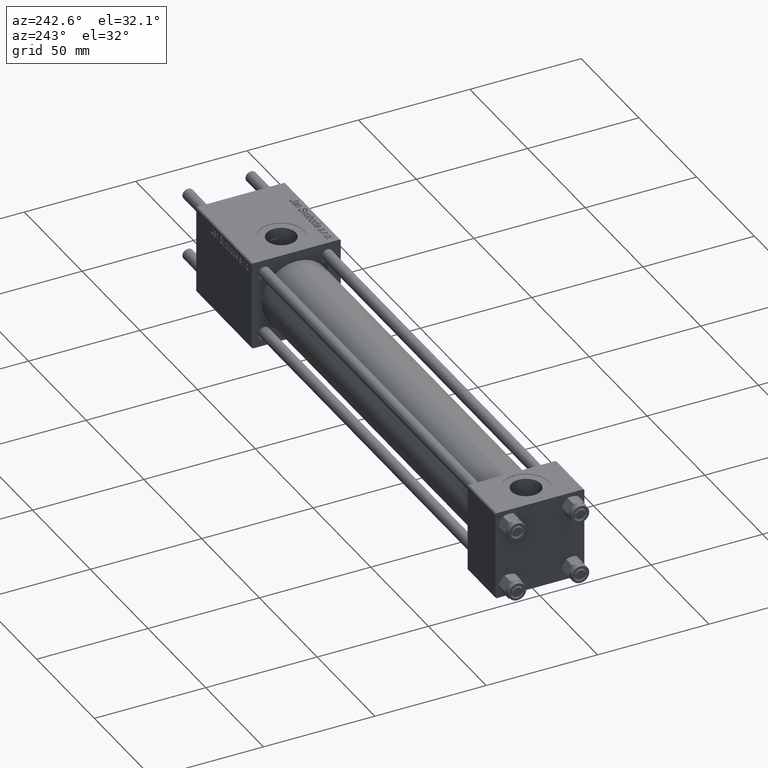
[diagram: clean part render]
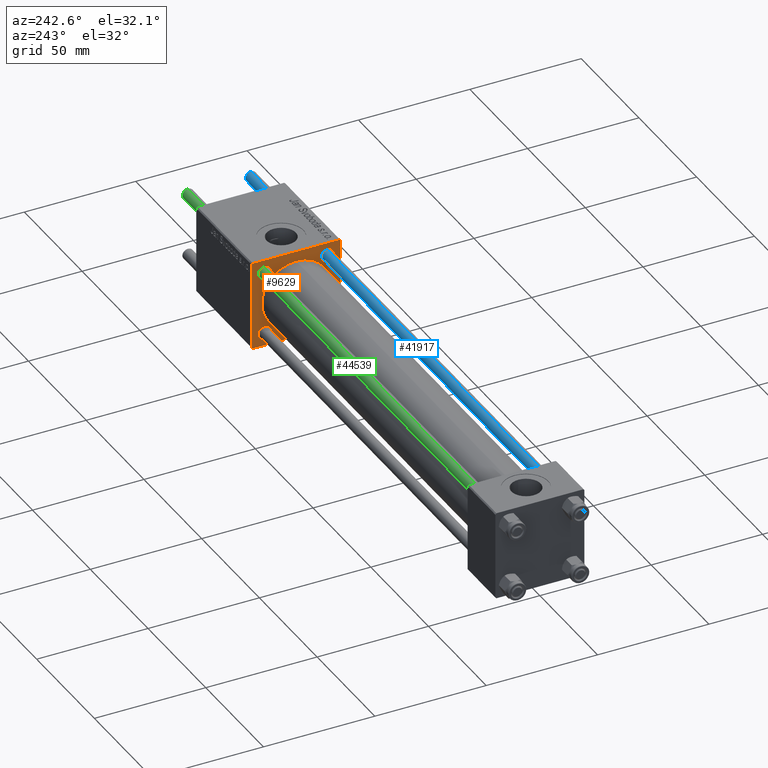
[diagram: same view with three faces highlighted in distinct colors, each labeled with its STEP entity id]
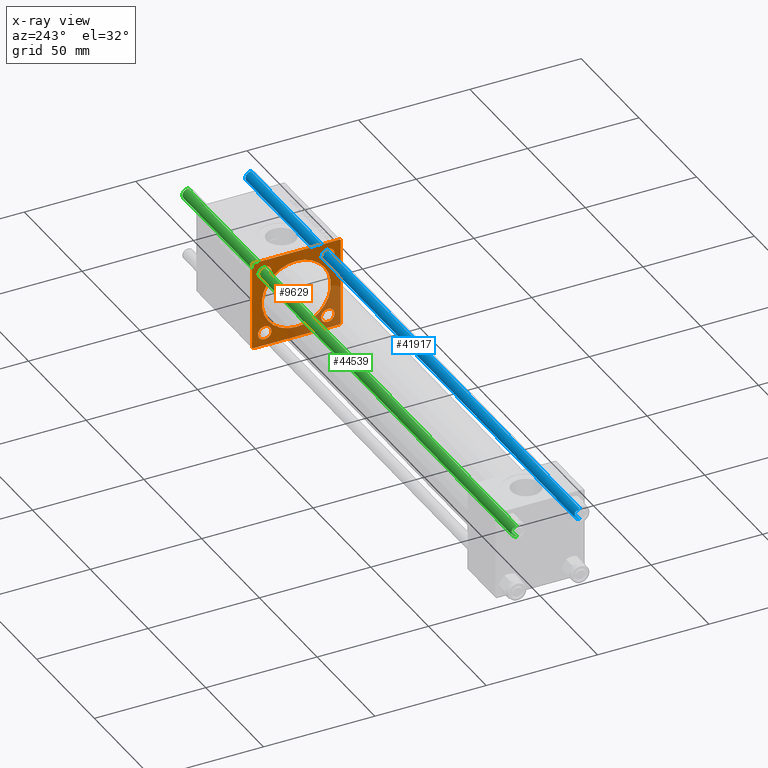
[diagram: x-ray of the same camera — body ghosted, the three highlighted faces saturated]
A machine part, auxiliary view with three faces highlighted in distinct colors.
The next image is the same camera in x-ray (body ghosted, the three faces saturated) — at least one of them is partly hidden behind the body in this view.
Their STEP definitions:

[orange] entity #9629 — the highlighted planar face has unit normal (-1, 0, 0).
#89 = EDGE_CURVE ( 'NONE', #3205, #21890, #40663, .T. ) ;
#1172 = EDGE_CURVE ( 'NONE', #6516, #19903, #2556, .T. ) ;
#1180 = AXIS2_PLACEMENT_3D ( 'NONE', #27321, #5872, #49700 ) ;
#1283 = LINE ( 'NONE', #54297, #10339 ) ;
#1593 = CARTESIAN_POINT ( 'NONE',  ( 211.0000000000000000, 19.49999999999999645, 20.00000000000000000 ) ) ;
#2121 = CARTESIAN_POINT ( 'NONE',  ( 211.0000000000000000, 19.74999999999999645, 19.74999999999999645 ) ) ;
#2147 = ORIENTED_EDGE ( 'NONE', *, *, #33326, .T. ) ;
#2352 = FACE_BOUND ( 'NONE', #53226, .T. ) ;
#2556 = CIRCLE ( 'NONE', #15362, 2.999999999999976463 ) ;
#2657 = VERTEX_POINT ( 'NONE', #10952 ) ;
#2728 = VECTOR ( 'NONE', #15574, 1000.000000000000114 ) ;
#2730 = VERTEX_POINT ( 'NONE', #21792 ) ;
#2934 = DIRECTION ( 'NONE',  ( 1.000000000000000000, 0.000000000000000000, 0.000000000000000000 ) ) ;
#3205 = VERTEX_POINT ( 'NONE', #1593 ) ;
#3415 = CARTESIAN_POINT ( 'NONE',  ( 211.0000000000000000, -19.50000000000000355, 19.99999999999999645 ) ) ;
#4075 = DIRECTION ( 'NONE',  ( 0.000000000000000000, 0.000000000000000000, -1.000000000000000000 ) ) ;
#4625 = AXIS2_PLACEMENT_3D ( 'NONE', #31093, #23057, #49155 ) ;
#5005 = ORIENTED_EDGE ( 'NONE', *, *, #23410, .T. ) ;
#5299 = CARTESIAN_POINT ( 'NONE',  ( 211.0000000000000000, 14.15000000000000036, -17.14999999999997726 ) ) ;
#5872 = DIRECTION ( 'NONE',  ( 1.000000000000000000, 0.000000000000000000, 0.000000000000000000 ) ) ;
#6105 = DIRECTION ( 'NONE',  ( -1.000000000000000000, 0.000000000000000000, -0.000000000000000000 ) ) ;
#6516 = VERTEX_POINT ( 'NONE', #5299 ) ;
#6795 = CARTESIAN_POINT ( 'NONE',  ( 211.0000000000000000, -14.15000000000000036, -14.15000000000000036 ) ) ;
#7353 = EDGE_CURVE ( 'NONE', #3205, #43130, #19021, .T. ) ;
#8041 = CARTESIAN_POINT ( 'NONE',  ( 211.0000000000000000, -19.75000000000055067, -19.74999999999945288 ) ) ;
#8733 = CARTESIAN_POINT ( 'NONE',  ( 211.0000000000000000, -7.038826752868131828E-16, -15.50000000000000000 ) ) ;
#8813 = VERTEX_POINT ( 'NONE', #33570 ) ;
#8987 = EDGE_CURVE ( 'NONE', #44267, #21890, #36119, .T. ) ;
#9629 = ADVANCED_FACE ( 'NONE', ( #14701, #2352, #10403, #32165, #45356, #41326 ), #31609, .T. ) ;
#10044 = DIRECTION ( 'NONE',  ( -0.000000000000000000, 0.7071067811865671127, 0.7071067811865279218 ) ) ;
#10220 = VECTOR ( 'NONE', #4075, 1000.000000000000000 ) ;
#10339 = VECTOR ( 'NONE', #44831, 1000.000000000000114 ) ;
#10403 = FACE_BOUND ( 'NONE', #33477, .T. ) ;
#10756 = VERTEX_POINT ( 'NONE', #25812 ) ;
#10817 = EDGE_CURVE ( 'NONE', #8813, #14650, #16525, .T. ) ;
#10952 = CARTESIAN_POINT ( 'NONE',  ( 211.0000000000000000, -14.15000000000000036, 17.15000000000000568 ) ) ;
#11035 = VERTEX_POINT ( 'NONE', #28841 ) ;
#11195 = DIRECTION ( 'NONE',  ( 0.000000000000000000, 0.000000000000000000, 1.000000000000000000 ) ) ;
#12259 = CIRCLE ( 'NONE', #46104, 3.000000000000004441 ) ;
#12679 = CARTESIAN_POINT ( 'NONE',  ( 211.0000000000000000, -14.15000000000000036, -11.15000000000002522 ) ) ;
#12897 = DIRECTION ( 'NONE',  ( 0.000000000000000000, -0.7071067811865279218, 0.7071067811865672237 ) ) ;
#13126 = CARTESIAN_POINT ( 'NONE',  ( 211.0000000000000000, -14.15000000000000036, 14.15000000000000036 ) ) ;
#13873 = LINE ( 'NONE', #47977, #45117 ) ;
#14449 = VECTOR ( 'NONE', #53578, 1000.000000000000000 ) ;
#14553 = DIRECTION ( 'NONE',  ( 1.000000000000000000, 0.000000000000000000, 0.000000000000000000 ) ) ;
#14650 = VERTEX_POINT ( 'NONE', #8733 ) ;
#14667 = ORIENTED_EDGE ( 'NONE', *, *, #43775, .T. ) ;
#14701 = FACE_BOUND ( 'NONE', #24207, .T. ) ;
#14937 = DIRECTION ( 'NONE',  ( 1.000000000000000000, 0.000000000000000000, 0.000000000000000000 ) ) ;
#15362 = AXIS2_PLACEMENT_3D ( 'NONE', #54357, #24778, #46583 ) ;
#15574 = DIRECTION ( 'NONE',  ( 0.000000000000000000, 0.7071067811865474617, -0.7071067811865474617 ) ) ;
#16066 = VERTEX_POINT ( 'NONE', #20902 ) ;
#16525 = CIRCLE ( 'NONE', #29350, 15.50000000000000000 ) ;
#16834 = VERTEX_POINT ( 'NONE', #12679 ) ;
#17201 = ORIENTED_EDGE ( 'NONE', *, *, #1172, .T. ) ;
#17742 = VECTOR ( 'NONE', #12897, 1000.000000000000000 ) ;
#18307 = CARTESIAN_POINT ( 'NONE',  ( 211.0000000000000000, 19.99999999999999645, 20.00000000000000000 ) ) ;
#18321 = EDGE_CURVE ( 'NONE', #53914, #10756, #28872, .T. ) ;
#19021 = LINE ( 'NONE', #2121, #2728 ) ;
#19510 = ORIENTED_EDGE ( 'NONE', *, *, #34908, .T. ) ;
#19903 = VERTEX_POINT ( 'NONE', #24016 ) ;
#20902 = CARTESIAN_POINT ( 'NONE',  ( 211.0000000000000000, 19.99999999999999645, -19.50000000000000000 ) ) ;
#20914 = ORIENTED_EDGE ( 'NONE', *, *, #18321, .T. ) ;
#21600 = EDGE_CURVE ( 'NONE', #44267, #2730, #13873, .T. ) ;
#21627 = CARTESIAN_POINT ( 'NONE',  ( 211.0000000000000000, 14.15000000000000036, 17.15000000000000568 ) ) ;
#21792 = CARTESIAN_POINT ( 'NONE',  ( 211.0000000000000000, -20.00000000000000000, -19.49999999999999645 ) ) ;
#21890 = VERTEX_POINT ( 'NONE', #3415 ) ;
#22505 = CARTESIAN_POINT ( 'NONE',  ( 211.0000000000000000, -14.15000000000000036, 11.14999999999999858 ) ) ;
#22996 = ORIENTED_EDGE ( 'NONE', *, *, #10817, .T. ) ;
#23057 = DIRECTION ( 'NONE',  ( 1.000000000000000000, 0.000000000000000000, 0.000000000000000000 ) ) ;
#23267 = DIRECTION ( 'NONE',  ( 1.000000000000000000, 0.000000000000000000, 0.000000000000000000 ) ) ;
#23410 = EDGE_CURVE ( 'NONE', #11035, #16834, #38242, .T. ) ;
#23644 = AXIS2_PLACEMENT_3D ( 'NONE', #36703, #14937, #11195 ) ;
#24016 = CARTESIAN_POINT ( 'NONE',  ( 211.0000000000000000, 14.15000000000000036, -11.15000000000002522 ) ) ;
#24112 = CARTESIAN_POINT ( 'NONE',  ( 211.0000000000000000, -14.15000000000000036, 14.15000000000000036 ) ) ;
#24207 = EDGE_LOOP ( 'NONE', ( #19510, #55896 ) ) ;
#24475 = ORIENTED_EDGE ( 'NONE', *, *, #46307, .T. ) ;
#24696 = ORIENTED_EDGE ( 'NONE', *, *, #43770, .T. ) ;
#24778 = DIRECTION ( 'NONE',  ( 1.000000000000000000, 0.000000000000000000, 0.000000000000000000 ) ) ;
#24832 = AXIS2_PLACEMENT_3D ( 'NONE', #24112, #2934, #33303 ) ;
#25444 = CARTESIAN_POINT ( 'NONE',  ( 211.0000000000000000, 14.15000000000000036, 11.14999999999999858 ) ) ;
#25812 = CARTESIAN_POINT ( 'NONE',  ( 211.0000000000000000, -19.50000000000002487, -20.00000000000000000 ) ) ;
#26329 = EDGE_CURVE ( 'NONE', #47024, #52666, #41946, .T. ) ;
#27037 = AXIS2_PLACEMENT_3D ( 'NONE', #6795, #28539, #54941 ) ;
#27269 = CARTESIAN_POINT ( 'NONE',  ( 211.0000000000000000, -14.15000000000000036, -14.15000000000000036 ) ) ;
#27321 = CARTESIAN_POINT ( 'NONE',  ( 211.0000000000000000, -2.602085213965210642E-15, 0.000000000000000000 ) ) ;
#27580 = CIRCLE ( 'NONE', #24832, 3.000000000000004441 ) ;
#27840 = CARTESIAN_POINT ( 'NONE',  ( 211.0000000000000000, 19.49999999999999645, -20.00000000000000000 ) ) ;
#28539 = DIRECTION ( 'NONE',  ( 1.000000000000000000, 0.000000000000000000, 0.000000000000000000 ) ) ;
#28841 = CARTESIAN_POINT ( 'NONE',  ( 211.0000000000000000, -14.15000000000000036, -17.14999999999997726 ) ) ;
#28872 = LINE ( 'NONE', #46956, #44105 ) ;
#29350 = AXIS2_PLACEMENT_3D ( 'NONE', #46990, #50720, #41825 ) ;
#30243 = AXIS2_PLACEMENT_3D ( 'NONE', #32721, #6105, #35919 ) ;
#30359 = CIRCLE ( 'NONE', #45916, 3.000000000000004441 ) ;
#31093 = CARTESIAN_POINT ( 'NONE',  ( 211.0000000000000000, 14.15000000000000036, -14.15000000000000036 ) ) ;
#31281 = LINE ( 'NONE', #48777, #10220 ) ;
#31488 = VERTEX_POINT ( 'NONE', #22505 ) ;
#31609 = PLANE ( 'NONE',  #30243 ) ;
#32165 = FACE_BOUND ( 'NONE', #52512, .T. ) ;
#32608 = ORIENTED_EDGE ( 'NONE', *, *, #40043, .T. ) ;
#32687 = ORIENTED_EDGE ( 'NONE', *, *, #21600, .F. ) ;
#32721 = CARTESIAN_POINT ( 'NONE',  ( 211.0000000000000000, 0.000000000000000000, 0.000000000000000000 ) ) ;
#33186 = CIRCLE ( 'NONE', #1180, 15.50000000000000000 ) ;
#33303 = DIRECTION ( 'NONE',  ( 0.000000000000000000, 0.000000000000000000, 1.000000000000000000 ) ) ;
#33326 = EDGE_CURVE ( 'NONE', #19903, #6516, #36667, .T. ) ;
#33477 = EDGE_LOOP ( 'NONE', ( #2147, #17201 ) ) ;
#33570 = CARTESIAN_POINT ( 'NONE',  ( 211.0000000000000000, -2.602085213965210642E-15, 15.50000000000000000 ) ) ;
#34147 = EDGE_LOOP ( 'NONE', ( #20914, #24475, #32687, #39073, #38512, #56537, #32608, #14667 ) ) ;
#34664 = CARTESIAN_POINT ( 'NONE',  ( 211.0000000000000000, 19.99999999999999645, 19.50000000000000000 ) ) ;
#34668 = LINE ( 'NONE', #8041, #17742 ) ;
#34781 = DIRECTION ( 'NONE',  ( 0.000000000000000000, 8.673617379884036705E-17, -1.000000000000000000 ) ) ;
#34908 = EDGE_CURVE ( 'NONE', #2657, #31488, #27580, .T. ) ;
#35186 = DIRECTION ( 'NONE',  ( 0.000000000000000000, 0.000000000000000000, 1.000000000000000000 ) ) ;
#35919 = DIRECTION ( 'NONE',  ( -0.000000000000000000, 0.000000000000000000, 1.000000000000000000 ) ) ;
#35923 = ORIENTED_EDGE ( 'NONE', *, *, #48386, .T. ) ;
#36119 = LINE ( 'NONE', #53342, #44866 ) ;
#36667 = CIRCLE ( 'NONE', #4625, 2.999999999999976463 ) ;
#36703 = CARTESIAN_POINT ( 'NONE',  ( 211.0000000000000000, 14.15000000000000036, 14.15000000000000036 ) ) ;
#37332 = AXIS2_PLACEMENT_3D ( 'NONE', #27269, #23267, #40487 ) ;
#38022 = CIRCLE ( 'NONE', #27037, 2.999999999999976463 ) ;
#38242 = CIRCLE ( 'NONE', #37332, 2.999999999999976463 ) ;
#38512 = ORIENTED_EDGE ( 'NONE', *, *, #89, .F. ) ;
#38613 = EDGE_LOOP ( 'NONE', ( #22996, #24696 ) ) ;
#39073 = ORIENTED_EDGE ( 'NONE', *, *, #8987, .T. ) ;
#40043 = EDGE_CURVE ( 'NONE', #43130, #16066, #31281, .T. ) ;
#40487 = DIRECTION ( 'NONE',  ( 0.000000000000000000, 0.000000000000000000, 1.000000000000000000 ) ) ;
#40663 = LINE ( 'NONE', #18307, #14449 ) ;
#41096 = EDGE_CURVE ( 'NONE', #31488, #2657, #30359, .T. ) ;
#41326 = FACE_OUTER_BOUND ( 'NONE', #34147, .T. ) ;
#41825 = DIRECTION ( 'NONE',  ( 0.000000000000000000, 0.000000000000000000, -1.000000000000000000 ) ) ;
#41946 = CIRCLE ( 'NONE', #23644, 3.000000000000004441 ) ;
#42931 = DIRECTION ( 'NONE',  ( 0.000000000000000000, -1.000000000000000000, 0.000000000000000000 ) ) ;
#43130 = VERTEX_POINT ( 'NONE', #34664 ) ;
#43268 = ORIENTED_EDGE ( 'NONE', *, *, #26329, .T. ) ;
#43506 = DIRECTION ( 'NONE',  ( 1.000000000000000000, 0.000000000000000000, 0.000000000000000000 ) ) ;
#43770 = EDGE_CURVE ( 'NONE', #14650, #8813, #33186, .T. ) ;
#43775 = EDGE_CURVE ( 'NONE', #16066, #53914, #1283, .T. ) ;
#44075 = CARTESIAN_POINT ( 'NONE',  ( 211.0000000000000000, -20.00000000000000355, 19.50000000000002487 ) ) ;
#44105 = VECTOR ( 'NONE', #42931, 1000.000000000000000 ) ;
#44267 = VERTEX_POINT ( 'NONE', #44075 ) ;
#44831 = DIRECTION ( 'NONE',  ( -0.000000000000000000, -0.7071067811865474617, -0.7071067811865474617 ) ) ;
#44866 = VECTOR ( 'NONE', #10044, 1000.000000000000000 ) ;
#45117 = VECTOR ( 'NONE', #34781, 1000.000000000000000 ) ;
#45356 = FACE_BOUND ( 'NONE', #38613, .T. ) ;
#45769 = ORIENTED_EDGE ( 'NONE', *, *, #51775, .T. ) ;
#45916 = AXIS2_PLACEMENT_3D ( 'NONE', #13126, #43506, #35186 ) ;
#46104 = AXIS2_PLACEMENT_3D ( 'NONE', #53830, #14553, #54108 ) ;
#46307 = EDGE_CURVE ( 'NONE', #10756, #2730, #34668, .T. ) ;
#46583 = DIRECTION ( 'NONE',  ( 0.000000000000000000, 0.000000000000000000, 1.000000000000000000 ) ) ;
#46956 = CARTESIAN_POINT ( 'NONE',  ( 211.0000000000000000, 19.99999999999999645, -20.00000000000000000 ) ) ;
#46990 = CARTESIAN_POINT ( 'NONE',  ( 211.0000000000000000, -2.602085213965210642E-15, 0.000000000000000000 ) ) ;
#47024 = VERTEX_POINT ( 'NONE', #21627 ) ;
#47977 = CARTESIAN_POINT ( 'NONE',  ( 211.0000000000000000, -20.00000000000000355, 19.99999999999999645 ) ) ;
#48386 = EDGE_CURVE ( 'NONE', #52666, #47024, #12259, .T. ) ;
#48777 = CARTESIAN_POINT ( 'NONE',  ( 211.0000000000000000, 19.99999999999999645, 20.00000000000000000 ) ) ;
#49155 = DIRECTION ( 'NONE',  ( 0.000000000000000000, 0.000000000000000000, 1.000000000000000000 ) ) ;
#49700 = DIRECTION ( 'NONE',  ( 0.000000000000000000, 0.000000000000000000, -1.000000000000000000 ) ) ;
#50720 = DIRECTION ( 'NONE',  ( 1.000000000000000000, 0.000000000000000000, 0.000000000000000000 ) ) ;
#51775 = EDGE_CURVE ( 'NONE', #16834, #11035, #38022, .T. ) ;
#52512 = EDGE_LOOP ( 'NONE', ( #45769, #5005 ) ) ;
#52666 = VERTEX_POINT ( 'NONE', #25444 ) ;
#53226 = EDGE_LOOP ( 'NONE', ( #43268, #35923 ) ) ;
#53342 = CARTESIAN_POINT ( 'NONE',  ( 211.0000000000000000, -19.74999999999945999, 19.75000000000055067 ) ) ;
#53578 = DIRECTION ( 'NONE',  ( 0.000000000000000000, -1.000000000000000000, -8.673617379884035472E-17 ) ) ;
#53830 = CARTESIAN_POINT ( 'NONE',  ( 211.0000000000000000, 14.15000000000000036, 14.15000000000000036 ) ) ;
#53914 = VERTEX_POINT ( 'NONE', #27840 ) ;
#54108 = DIRECTION ( 'NONE',  ( 0.000000000000000000, 0.000000000000000000, 1.000000000000000000 ) ) ;
#54297 = CARTESIAN_POINT ( 'NONE',  ( 211.0000000000000000, 19.74999999999999645, -19.74999999999999645 ) ) ;
#54357 = CARTESIAN_POINT ( 'NONE',  ( 211.0000000000000000, 14.15000000000000036, -14.15000000000000036 ) ) ;
#54941 = DIRECTION ( 'NONE',  ( 0.000000000000000000, 0.000000000000000000, 1.000000000000000000 ) ) ;
#55896 = ORIENTED_EDGE ( 'NONE', *, *, #41096, .T. ) ;
#56537 = ORIENTED_EDGE ( 'NONE', *, *, #7353, .T. ) ;

[blue] entity #41917 — the highlighted cylindrical surface (edge-blend (fillet) strip) has radius 2.5 mm, axis along (-1, 0, -0).
#3149 = VERTEX_POINT ( 'NONE', #19335 ) ;
#3913 = DIRECTION ( 'NONE',  ( 1.000000000000000000, 0.000000000000000000, 0.000000000000000000 ) ) ;
#5172 = DIRECTION ( 'NONE',  ( -0.000000000000000000, -0.000000000000000000, -1.000000000000000000 ) ) ;
#5392 = CARTESIAN_POINT ( 'NONE',  ( 0.000000000000000000, 0.000000000000000000, 286.0000000000000000 ) ) ;
#6002 = CIRCLE ( 'NONE', #43508, 2.500000000000000000 ) ;
#6229 = DIRECTION ( 'NONE',  ( -0.000000000000000000, -0.000000000000000000, -1.000000000000000000 ) ) ;
#11170 = DIRECTION ( 'NONE',  ( -0.000000000000000000, -0.000000000000000000, -1.000000000000000000 ) ) ;
#11255 = ORIENTED_EDGE ( 'NONE', *, *, #35222, .F. ) ;
#13073 = CARTESIAN_POINT ( 'NONE',  ( 0.000000000000000000, 0.000000000000000000, 0.4999999999999449329 ) ) ;
#14229 = AXIS2_PLACEMENT_3D ( 'NONE', #13073, #25652, #3913 ) ;
#16055 = CIRCLE ( 'NONE', #14229, 2.500000000000000000 ) ;
#17440 = ORIENTED_EDGE ( 'NONE', *, *, #51909, .T. ) ;
#18058 = CARTESIAN_POINT ( 'NONE',  ( -2.500000000000000000, 0.000000000000000000, 286.0000000000000000 ) ) ;
#18187 = EDGE_CURVE ( 'NONE', #34528, #36502, #53039, .T. ) ;
#18227 = CARTESIAN_POINT ( 'NONE',  ( 2.500000000000000000, 3.061616997868383141E-16, 285.4999999999999432 ) ) ;
#19335 = CARTESIAN_POINT ( 'NONE',  ( 2.500000000000000000, 3.061616997868383141E-16, 0.4999999999999449329 ) ) ;
#20025 = LINE ( 'NONE', #24036, #25726 ) ;
#23670 = DIRECTION ( 'NONE',  ( -1.000000000000000000, 0.000000000000000000, 0.000000000000000000 ) ) ;
#24036 = CARTESIAN_POINT ( 'NONE',  ( 2.500000000000000000, 3.061616997868383141E-16, 286.0000000000000000 ) ) ;
#24111 = ORIENTED_EDGE ( 'NONE', *, *, #18187, .T. ) ;
#24150 = CARTESIAN_POINT ( 'NONE',  ( -2.500000000000000000, 0.000000000000000000, 0.4999999999999449329 ) ) ;
#24517 = CARTESIAN_POINT ( 'NONE',  ( 0.000000000000000000, 0.000000000000000000, 285.4999999999999432 ) ) ;
#25652 = DIRECTION ( 'NONE',  ( -0.000000000000000000, -0.000000000000000000, 1.000000000000000000 ) ) ;
#25726 = VECTOR ( 'NONE', #11170, 1000.000000000000000 ) ;
#27132 = FACE_OUTER_BOUND ( 'NONE', #39697, .T. ) ;
#32849 = DIRECTION ( 'NONE',  ( 1.000000000000000000, 0.000000000000000000, 0.000000000000000000 ) ) ;
#34528 = VERTEX_POINT ( 'NONE', #46842 ) ;
#34999 = AXIS2_PLACEMENT_3D ( 'NONE', #5392, #6229, #23670 ) ;
#35222 = EDGE_CURVE ( 'NONE', #39254, #3149, #20025, .T. ) ;
#36502 = VERTEX_POINT ( 'NONE', #24150 ) ;
#39254 = VERTEX_POINT ( 'NONE', #18227 ) ;
#39552 = VECTOR ( 'NONE', #5172, 1000.000000000000000 ) ;
#39697 = EDGE_LOOP ( 'NONE', ( #11255, #55332, #24111, #17440 ) ) ;
#41917 = ADVANCED_FACE ( 'NONE', ( #27132 ), #44644, .T. ) ;
#43508 = AXIS2_PLACEMENT_3D ( 'NONE', #24517, #45758, #32849 ) ;
#44644 = CYLINDRICAL_SURFACE ( 'NONE', #34999, 2.500000000000000000 ) ;
#45758 = DIRECTION ( 'NONE',  ( 0.000000000000000000, 0.000000000000000000, -1.000000000000000000 ) ) ;
#46842 = CARTESIAN_POINT ( 'NONE',  ( -2.500000000000000000, 0.000000000000000000, 285.4999999999999432 ) ) ;
#51776 = EDGE_CURVE ( 'NONE', #39254, #34528, #6002, .T. ) ;
#51909 = EDGE_CURVE ( 'NONE', #36502, #3149, #16055, .T. ) ;
#53039 = LINE ( 'NONE', #18058, #39552 ) ;
#55332 = ORIENTED_EDGE ( 'NONE', *, *, #51776, .T. ) ;

[green] entity #44539 — the highlighted cylindrical surface (edge-blend (fillet) strip) has radius 2.5 mm, axis along (1, -0, -0).
#163 = DIRECTION ( 'NONE',  ( -0.000000000000000000, -0.000000000000000000, -1.000000000000000000 ) ) ;
#445 = CYLINDRICAL_SURFACE ( 'NONE', #21272, 2.500000000000000000 ) ;
#3149 = VERTEX_POINT ( 'NONE', #19335 ) ;
#3674 = DIRECTION ( 'NONE',  ( 0.000000000000000000, 0.000000000000000000, -1.000000000000000000 ) ) ;
#5172 = DIRECTION ( 'NONE',  ( -0.000000000000000000, -0.000000000000000000, -1.000000000000000000 ) ) ;
#8146 = EDGE_CURVE ( 'NONE', #34528, #39254, #26511, .T. ) ;
#8324 = EDGE_CURVE ( 'NONE', #3149, #36502, #38437, .T. ) ;
#10615 = EDGE_LOOP ( 'NONE', ( #12474, #50154, #43032, #48078 ) ) ;
#11170 = DIRECTION ( 'NONE',  ( -0.000000000000000000, -0.000000000000000000, -1.000000000000000000 ) ) ;
#11939 = AXIS2_PLACEMENT_3D ( 'NONE', #22279, #3674, #21134 ) ;
#12474 = ORIENTED_EDGE ( 'NONE', *, *, #8146, .T. ) ;
#14192 = DIRECTION ( 'NONE',  ( -1.000000000000000000, 0.000000000000000000, 0.000000000000000000 ) ) ;
#14683 = AXIS2_PLACEMENT_3D ( 'NONE', #16162, #46819, #34203 ) ;
#16162 = CARTESIAN_POINT ( 'NONE',  ( 0.000000000000000000, 0.000000000000000000, 0.4999999999999449329 ) ) ;
#18058 = CARTESIAN_POINT ( 'NONE',  ( -2.500000000000000000, 0.000000000000000000, 286.0000000000000000 ) ) ;
#18187 = EDGE_CURVE ( 'NONE', #34528, #36502, #53039, .T. ) ;
#18227 = CARTESIAN_POINT ( 'NONE',  ( 2.500000000000000000, 3.061616997868383141E-16, 285.4999999999999432 ) ) ;
#19335 = CARTESIAN_POINT ( 'NONE',  ( 2.500000000000000000, 3.061616997868383141E-16, 0.4999999999999449329 ) ) ;
#20025 = LINE ( 'NONE', #24036, #25726 ) ;
#21134 = DIRECTION ( 'NONE',  ( 1.000000000000000000, 0.000000000000000000, 0.000000000000000000 ) ) ;
#21272 = AXIS2_PLACEMENT_3D ( 'NONE', #52896, #163, #14192 ) ;
#22279 = CARTESIAN_POINT ( 'NONE',  ( 0.000000000000000000, 0.000000000000000000, 285.4999999999999432 ) ) ;
#24036 = CARTESIAN_POINT ( 'NONE',  ( 2.500000000000000000, 3.061616997868383141E-16, 286.0000000000000000 ) ) ;
#24150 = CARTESIAN_POINT ( 'NONE',  ( -2.500000000000000000, 0.000000000000000000, 0.4999999999999449329 ) ) ;
#25726 = VECTOR ( 'NONE', #11170, 1000.000000000000000 ) ;
#26511 = CIRCLE ( 'NONE', #11939, 2.500000000000000000 ) ;
#34203 = DIRECTION ( 'NONE',  ( 1.000000000000000000, 0.000000000000000000, 0.000000000000000000 ) ) ;
#34528 = VERTEX_POINT ( 'NONE', #46842 ) ;
#35222 = EDGE_CURVE ( 'NONE', #39254, #3149, #20025, .T. ) ;
#36502 = VERTEX_POINT ( 'NONE', #24150 ) ;
#38437 = CIRCLE ( 'NONE', #14683, 2.500000000000000000 ) ;
#39254 = VERTEX_POINT ( 'NONE', #18227 ) ;
#39552 = VECTOR ( 'NONE', #5172, 1000.000000000000000 ) ;
#39705 = FACE_OUTER_BOUND ( 'NONE', #10615, .T. ) ;
#43032 = ORIENTED_EDGE ( 'NONE', *, *, #8324, .T. ) ;
#44539 = ADVANCED_FACE ( 'NONE', ( #39705 ), #445, .T. ) ;
#46819 = DIRECTION ( 'NONE',  ( -0.000000000000000000, -0.000000000000000000, 1.000000000000000000 ) ) ;
#46842 = CARTESIAN_POINT ( 'NONE',  ( -2.500000000000000000, 0.000000000000000000, 285.4999999999999432 ) ) ;
#48078 = ORIENTED_EDGE ( 'NONE', *, *, #18187, .F. ) ;
#50154 = ORIENTED_EDGE ( 'NONE', *, *, #35222, .T. ) ;
#52896 = CARTESIAN_POINT ( 'NONE',  ( 0.000000000000000000, 0.000000000000000000, 286.0000000000000000 ) ) ;
#53039 = LINE ( 'NONE', #18058, #39552 ) ;